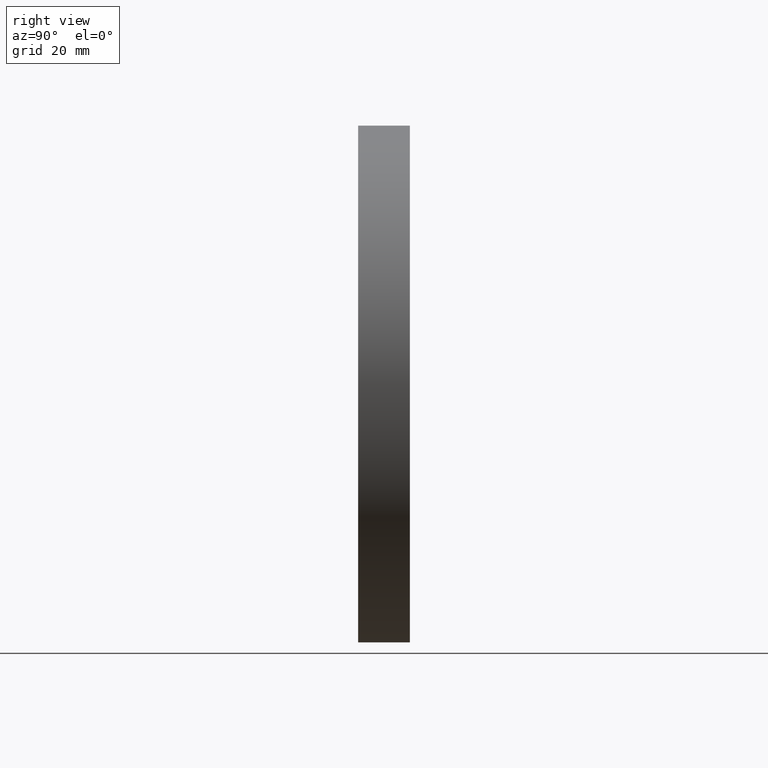
[diagram: clean part render]
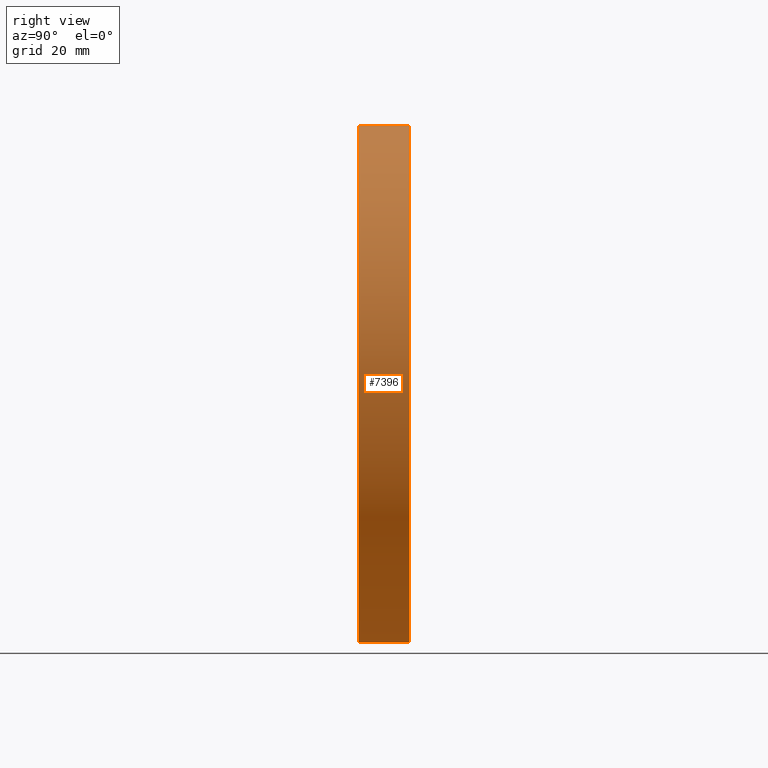
[diagram: same view with one face highlighted and labeled with its STEP entity id]
A machine part, right view. The second image highlights one B-rep face of the part: STEP entity #7396.
In plain terms, the highlighted cylindrical surface (partial cylindrical patch) has radius 50 mm, axis along (-0, -1, -0).
Its self-contained STEP definition (entity closure, byte-faithful):
#99 = AXIS2_PLACEMENT_3D ( 'NONE', #10203, #4856, #9229 ) ;
#285 = CIRCLE ( 'NONE', #99, 50.00000000000000000 ) ;
#308 = EDGE_CURVE ( 'NONE', #9887, #8874, #2154, .T. ) ;
#726 = VERTEX_POINT ( 'NONE', #7716 ) ;
#1247 = DIRECTION ( 'NONE',  ( -0.0000000000000000000, -1.000000000000000000, -0.0000000000000000000 ) ) ;
#1652 = AXIS2_PLACEMENT_3D ( 'NONE', #4131, #8542, #6723 ) ;
#1760 = ORIENTED_EDGE ( 'NONE', *, *, #2717, .F. ) ;
#2154 = CIRCLE ( 'NONE', #6120, 50.00000000000000000 ) ;
#2611 = VECTOR ( 'NONE', #1247, 1000.000000000000000 ) ;
#2638 = EDGE_LOOP ( 'NONE', ( #8364, #9291, #11297, #1760 ) ) ;
#2717 = EDGE_CURVE ( 'NONE', #8874, #726, #8606, .T. ) ;
#3138 = CYLINDRICAL_SURFACE ( 'NONE', #1652, 50.00000000000000000 ) ;
#4084 = DIRECTION ( 'NONE',  ( 0.0000000000000000000, 0.0000000000000000000, 1.000000000000000000 ) ) ;
#4131 = CARTESIAN_POINT ( 'NONE',  ( 0.0000000000000000000, 10.00000000000000000, 0.0000000000000000000 ) ) ;
#4856 = DIRECTION ( 'NONE',  ( 0.0000000000000000000, 1.000000000000000000, 0.0000000000000000000 ) ) ;
#5642 = DIRECTION ( 'NONE',  ( -0.0000000000000000000, -1.000000000000000000, -0.0000000000000000000 ) ) ;
#5676 = CARTESIAN_POINT ( 'NONE',  ( 6.123233995736766100E-015, 0.0000000000000000000, 50.00000000000000000 ) ) ;
#5731 = CARTESIAN_POINT ( 'NONE',  ( 0.0000000000000000000, 10.00000000000000000, 0.0000000000000000000 ) ) ;
#6045 = FACE_OUTER_BOUND ( 'NONE', #2638, .T. ) ;
#6120 = AXIS2_PLACEMENT_3D ( 'NONE', #5731, #6678, #4084 ) ;
#6663 = CARTESIAN_POINT ( 'NONE',  ( 0.0000000000000000000, 10.00000000000000000, -50.00000000000000000 ) ) ;
#6678 = DIRECTION ( 'NONE',  ( 0.0000000000000000000, 1.000000000000000000, 0.0000000000000000000 ) ) ;
#6723 = DIRECTION ( 'NONE',  ( 0.0000000000000000000, 0.0000000000000000000, -1.000000000000000000 ) ) ;
#7396 = ADVANCED_FACE ( 'NONE', ( #6045 ), #3138, .T. ) ;
#7502 = VECTOR ( 'NONE', #5642, 1000.000000000000000 ) ;
#7716 = CARTESIAN_POINT ( 'NONE',  ( 0.0000000000000000000, 0.0000000000000000000, -50.00000000000000000 ) ) ;
#8364 = ORIENTED_EDGE ( 'NONE', *, *, #308, .F. ) ;
#8542 = DIRECTION ( 'NONE',  ( -0.0000000000000000000, -1.000000000000000000, -0.0000000000000000000 ) ) ;
#8606 = LINE ( 'NONE', #6663, #2611 ) ;
#8874 = VERTEX_POINT ( 'NONE', #9318 ) ;
#9068 = CARTESIAN_POINT ( 'NONE',  ( 6.123233995736766100E-015, 10.00000000000000000, 50.00000000000000000 ) ) ;
#9229 = DIRECTION ( 'NONE',  ( 0.0000000000000000000, 0.0000000000000000000, 1.000000000000000000 ) ) ;
#9291 = ORIENTED_EDGE ( 'NONE', *, *, #10017, .T. ) ;
#9318 = CARTESIAN_POINT ( 'NONE',  ( 0.0000000000000000000, 10.00000000000000000, -50.00000000000000000 ) ) ;
#9712 = VERTEX_POINT ( 'NONE', #5676 ) ;
#9887 = VERTEX_POINT ( 'NONE', #10817 ) ;
#10017 = EDGE_CURVE ( 'NONE', #9887, #9712, #10159, .T. ) ;
#10159 = LINE ( 'NONE', #9068, #7502 ) ;
#10203 = CARTESIAN_POINT ( 'NONE',  ( 0.0000000000000000000, 0.0000000000000000000, 0.0000000000000000000 ) ) ;
#10817 = CARTESIAN_POINT ( 'NONE',  ( 6.123233995736766100E-015, 10.00000000000000000, 50.00000000000000000 ) ) ;
#10987 = EDGE_CURVE ( 'NONE', #9712, #726, #285, .T. ) ;
#11297 = ORIENTED_EDGE ( 'NONE', *, *, #10987, .T. ) ;